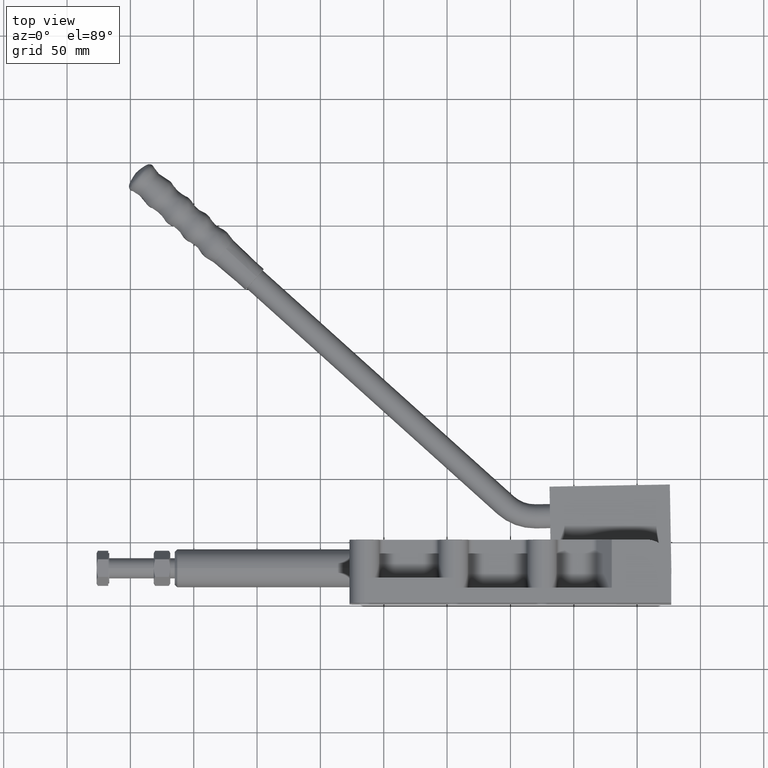
[diagram: clean part render]
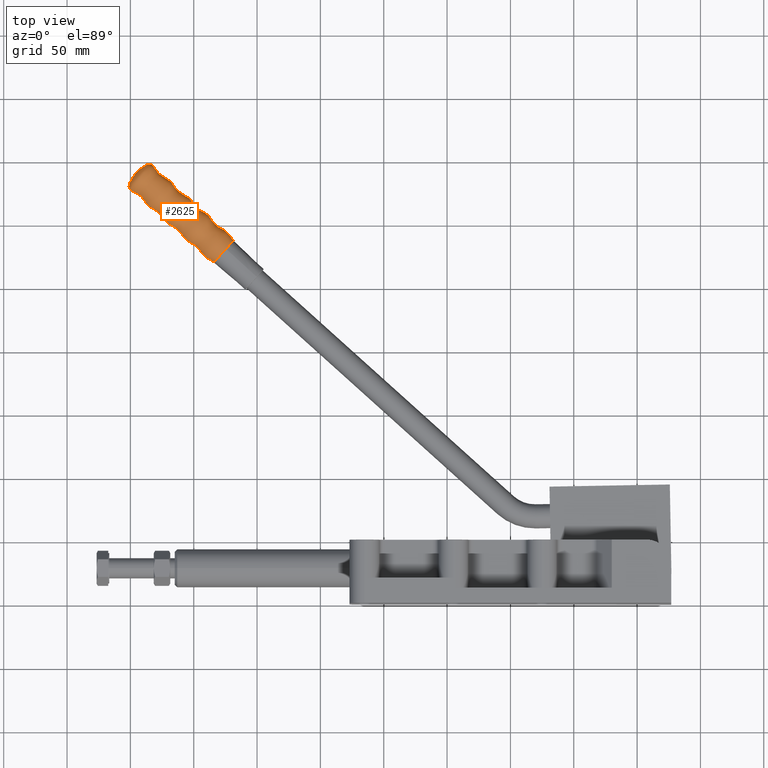
[diagram: same view with one face highlighted and labeled with its STEP entity id]
A machine part, top view. The second image highlights one B-rep face of the part: STEP entity #2625.
In plain terms, the highlighted face is a freeform B-spline surface patch.
Its self-contained STEP definition (entity closure, byte-faithful):
#28 = CARTESIAN_POINT ( 'NONE',  ( -254.5106291652287500, 335.5743864243483500, 17.11979770972116900 ) ) ;
#52 = CARTESIAN_POINT ( 'NONE',  ( -281.6762217080341200, 321.6960320530941400, 3.560345588633595100 ) ) ;
#107 = CARTESIAN_POINT ( 'NONE',  ( -213.9520070320345200, 293.4108676905666500, -2.609871035224047300 ) ) ;
#194 = B_SPLINE_CURVE_WITH_KNOTS ( 'NONE', 3,
 ( #5061, #5581, #2945, #6637, #3466, #324, #4000, #857, #4531, #1368, #5087, #1919, #5601 ),
 .UNSPECIFIED., .F., .F.,
 ( 4, 1, 1, 1, 1, 1, 1, 1, 1, 1, 4 ),
 ( 0.0000000000000000000, 0.08994797004921591100, 0.1485318457191311700, 0.2197926211854266400, 0.2783764968553418300, 0.3496372723216373300, 0.4082211479915524600, 0.4794819234578480100, 0.5380657991277633100, 0.6093265745940588100, 0.6620836091485169400 ),
 .UNSPECIFIED. ) ;
#238 = CARTESIAN_POINT ( 'NONE',  ( -291.2105354334088400, 345.9810656528912300, 13.53237301223307500 ) ) ;
#259 = DIRECTION ( 'NONE',  ( 0.7307264967569047100, -0.6826703354748771000, -2.333323979202567200E-015 ) ) ;
#324 = CARTESIAN_POINT ( 'NONE',  ( -270.9133151141563200, 318.0170434170149700, 2.435815052611434200 ) ) ;
#525 = CARTESIAN_POINT ( 'NONE',  ( -238.4985115027032200, 294.1401816108452200, 21.75009523037987700 ) ) ;
#578 = CARTESIAN_POINT ( 'NONE',  ( -276.9516711403325100, 326.7531644721934200, 32.23432350591771500 ) ) ;
#595 = EDGE_CURVE ( 'NONE', #5149, #3322, #4922, .T. ) ;
#603 = CARTESIAN_POINT ( 'NONE',  ( -243.0910718047488200, 318.5387892606787000, -2.240415557229932000 ) ) ;
#627 = CARTESIAN_POINT ( 'NONE',  ( -213.9520070320345400, 293.4108676905667600, -2.609871035224113500 ) ) ;
#679 = FACE_OUTER_BOUND ( 'NONE', #6065, .T. ) ;
#770 = CARTESIAN_POINT ( 'NONE',  ( -285.0029958433385100, 352.6255812007604500, -1.346448769620172100 ) ) ;
#775 = DIRECTION ( 'NONE',  ( -0.1601687072476779800, -0.1714436855612906900, -0.9720869549066939500 ) ) ;
#857 = CARTESIAN_POINT ( 'NONE',  ( -256.3305991171629300, 304.3672735099785900, 2.440415557231811600 ) ) ;
#1037 = CARTESIAN_POINT ( 'NONE',  ( -228.4932932773765500, 304.8497110618294000, -2.231364203453521700 ) ) ;
#1075 = CARTESIAN_POINT ( 'NONE',  ( -253.1351345699522700, 307.7876808321599900, 21.83415016737093200 ) ) ;
#1113 = CARTESIAN_POINT ( 'NONE',  ( -247.4714261874101500, 328.8849949211920000, -3.343399118365032700 ) ) ;
#1127 = CARTESIAN_POINT ( 'NONE',  ( -272.2493752652471800, 345.3338925256084100, -2.161825353253809600 ) ) ;
#1204 = CARTESIAN_POINT ( 'NONE',  ( -213.9520070320345200, 293.4108676905666500, -2.609871035224047300 ) ) ;
#1262 = EDGE_CURVE ( 'NONE', #1537, #5149, #3994, .T. ) ;
#1264 = CARTESIAN_POINT ( 'NONE',  ( -289.6304294393317500, 348.7473169137550100, 0.1000000000010746300 ) ) ;
#1325 = CARTESIAN_POINT ( 'NONE',  ( -285.0443246270434700, 331.6382505188062200, 2.361825353255911300 ) ) ;
#1368 = CARTESIAN_POINT ( 'NONE',  ( -241.6816178684758000, 290.7330024167358700, 2.431364203455308500 ) ) ;
#1537 = VERTEX_POINT ( 'NONE', #1204 ) ;
#1584 = CARTESIAN_POINT ( 'NONE',  ( -247.6355673098859400, 299.4098202889007900, 32.09251382653391700 ) ) ;
#1596 = CARTESIAN_POINT ( 'NONE',  ( -266.9504356027677000, 308.0347725360670100, 3.543399118366930400 ) ) ;
#1644 = CARTESIAN_POINT ( 'NONE',  ( -212.0684810393677000, 299.2055255599586900, 19.96441600118167500 ) ) ;
#1647 = CARTESIAN_POINT ( 'NONE',  ( -257.3767970161409300, 347.7059999037753600, 25.31363232865251700 ) ) ;
#1657 = CARTESIAN_POINT ( 'NONE',  ( -257.6998124563745000, 332.1607025234161500, -2.235815052609418300 ) ) ;
#1673 = CARTESIAN_POINT ( 'NONE',  ( -231.2126437834489300, 278.7137211730060900, 2.826213477871672500 ) ) ;
#1770 = B_SPLINE_CURVE_WITH_KNOTS ( 'NONE', 3,
 ( #3225, #6395, #4282, #1127, #4829, #1657, #5356, #2197, #5897, #2727, #6412, #3251, #107 ),
 .UNSPECIFIED., .F., .F.,
 ( 4, 1, 1, 1, 1, 1, 1, 1, 1, 1, 4 ),
 ( 0.0000000000000000000, 0.08994797004921591100, 0.1485318457191311700, 0.2197926211854266400, 0.2783764968553418300, 0.3496372723216373300, 0.4082211479915524600, 0.4794819234578480100, 0.5380657991277633100, 0.6093265745940588100, 0.6620836091485169400 ),
 .UNSPECIFIED. ) ;
#1866 = CARTESIAN_POINT ( 'NONE',  ( -229.2815118599849600, 277.0022517337091000, 2.809871035225806100 ) ) ;
#1919 = CARTESIAN_POINT ( 'NONE',  ( -231.2126437834488700, 278.7137211730060400, 2.826213477871680100 ) ) ;
#2185 = CARTESIAN_POINT ( 'NONE',  ( -215.7906911783962300, 295.2212927117666900, -2.626213477869974600 ) ) ;
#2197 = CARTESIAN_POINT ( 'NONE',  ( -243.0910718047488200, 318.5387892606787000, -2.240415557229888500 ) ) ;
#2264 = CARTESIAN_POINT ( 'NONE',  ( -229.2815118599850200, 277.0022517337091600, 2.809871035225799400 ) ) ;
#2410 = CARTESIAN_POINT ( 'NONE',  ( -283.0281005097293100, 354.7394980850877500, 10.63947547299051200 ) ) ;
#2625 = ADVANCED_FACE ( 'NONE', ( #679 ), #5751, .F. ) ;
#2655 = CARTESIAN_POINT ( 'NONE',  ( -241.6816178684759100, 290.7330024167359300, 2.431364203455302200 ) ) ;
#2669 = CARTESIAN_POINT ( 'NONE',  ( -257.6998124563745000, 332.1607025234161500, -2.235815052609461300 ) ) ;
#2715 = CARTESIAN_POINT ( 'NONE',  ( -238.0009115180335500, 280.9517867818578300, 3.549981909737450500 ) ) ;
#2727 = CARTESIAN_POINT ( 'NONE',  ( -228.4932932773765500, 304.8497110618294000, -2.231364203453479100 ) ) ;
#2880 = CARTESIAN_POINT ( 'NONE',  ( -289.6304294393316900, 348.7473169137550100, 0.1000000000010286400 ) ) ;
#2945 = CARTESIAN_POINT ( 'NONE',  ( -299.0558346065514000, 335.8084857256033000, 3.934981889074044200 ) ) ;
#3157 = CARTESIAN_POINT ( 'NONE',  ( -228.1470776593870400, 320.2701902645292200, 25.20236385536513500 ) ) ;
#3165 = CARTESIAN_POINT ( 'NONE',  ( -256.3305991171631000, 304.3672735099786500, 2.440415557231805400 ) ) ;
#3175 = CARTESIAN_POINT ( 'NONE',  ( -218.4846638242539700, 301.8418688112687400, -3.349981909735738000 ) ) ;
#3186 = CARTESIAN_POINT ( 'NONE',  ( -267.7241318230107900, 321.4307273179471700, 21.79142781494213900 ) ) ;
#3225 = CARTESIAN_POINT ( 'NONE',  ( -289.6304294393315200, 348.7473169137547900, 0.1000000000011044000 ) ) ;
#3251 = CARTESIAN_POINT ( 'NONE',  ( -215.7906911783962300, 295.2212927117666900, -2.626213477869924900 ) ) ;
#3294 = CARTESIAN_POINT ( 'NONE',  ( -299.0558346065516300, 335.8084857256034800, 3.934981889074033600 ) ) ;
#3322 = VERTEX_POINT ( 'NONE', #1866 ) ;
#3409 = CARTESIAN_POINT ( 'NONE',  ( -221.6167594460097200, 285.2065597121379000, 0.1000000000008902400 ) ) ;
#3466 = CARTESIAN_POINT ( 'NONE',  ( -281.6762217080338900, 321.6960320530939700, 3.560345588633604000 ) ) ;
#3702 = CARTESIAN_POINT ( 'NONE',  ( -242.7700133247924400, 333.9173608705908100, 25.19015273402023800 ) ) ;
#3714 = CARTESIAN_POINT ( 'NONE',  ( -225.3101869116037500, 308.2568902559388600, 17.08736682347096900 ) ) ;
#3749 = CARTESIAN_POINT ( 'NONE',  ( -239.8956072575379000, 321.9591965828600500, 17.15331905290911500 ) ) ;
#3766 = CARTESIAN_POINT ( 'NONE',  ( -233.2905109026292500, 285.9937731714107400, 32.13808172837669700 ) ) ;
#3775 = CARTESIAN_POINT ( 'NONE',  ( -269.1612131198629100, 348.6394439589282100, 16.58067552441502500 ) ) ;
#3933 = DIRECTION ( 'NONE',  ( -0.1601687072476779800, -0.1714436855612906900, -0.9720869549066939500 ) ) ;
#3965 = CARTESIAN_POINT ( 'NONE',  ( -272.2493752652471800, 345.3338925256084100, -2.161825353253850900 ) ) ;
#3994 = CIRCLE ( 'NONE', #4147, 11.54999999999999400 ) ;
#4000 = CARTESIAN_POINT ( 'NONE',  ( -266.9504356027675300, 308.0347725360669500, 3.543399118366939300 ) ) ;
#4088 = ORIENTED_EDGE ( 'NONE', *, *, #5778, .T. ) ;
#4147 = AXIS2_PLACEMENT_3D ( 'NONE', #5335, #4281, #775 ) ;
#4272 = CARTESIAN_POINT ( 'NONE',  ( -262.1013475838426500, 342.6488674846759200, -3.360345588631603600 ) ) ;
#4281 = DIRECTION ( 'NONE',  ( 0.7307264967569047100, -0.6826703354748771000, -2.333323979202567200E-015 ) ) ;
#4282 = CARTESIAN_POINT ( 'NONE',  ( -277.3616755047082700, 359.0297919063527800, -3.734981889071876000 ) ) ;
#4467 = CARTESIAN_POINT ( 'NONE',  ( -277.3616755047082700, 359.0297919063527800, -3.734981889071946600 ) ) ;
#4531 = CARTESIAN_POINT ( 'NONE',  ( -252.3392683021759500, 294.3750051383387900, 3.545074985585344500 ) ) ;
#4537 = CARTESIAN_POINT ( 'NONE',  ( -289.6304294393315200, 348.7473169137547900, 0.1000000000011044000 ) ) ;
#4603 = CARTESIAN_POINT ( 'NONE',  ( -281.9561624816593100, 334.9438019521259700, 21.10432623092486500 ) ) ;
#4787 = CARTESIAN_POINT ( 'NONE',  ( -262.2490227401500500, 313.0671384854657000, 32.07695097075236400 ) ) ;
#4818 = CARTESIAN_POINT ( 'NONE',  ( -270.9133151141564900, 318.0170434170150900, 2.435815052611428400 ) ) ;
#4829 = CARTESIAN_POINT ( 'NONE',  ( -262.1013475838426500, 342.6488674846759200, -3.360345588631540100 ) ) ;
#4910 = AXIS2_PLACEMENT_3D ( 'NONE', #3409, #259, #3933 ) ;
#4922 = CIRCLE ( 'NONE', #4910, 11.54999999999999400 ) ;
#5061 = CARTESIAN_POINT ( 'NONE',  ( -289.6304294393315200, 348.7473169137547900, 0.1000000000011044000 ) ) ;
#5087 = CARTESIAN_POINT ( 'NONE',  ( -238.0009115180334300, 280.9517867818578300, 3.549981909737459400 ) ) ;
#5105 = EDGE_CURVE ( 'NONE', #5362, #1537, #1770, .T. ) ;
#5149 = VERTEX_POINT ( 'NONE', #6458 ) ;
#5220 = ORIENTED_EDGE ( 'NONE', *, *, #595, .F. ) ;
#5243 = CARTESIAN_POINT ( 'NONE',  ( -289.6304294393317500, 348.7473169137550100, 0.1000000000010746500 ) ) ;
#5295 = CARTESIAN_POINT ( 'NONE',  ( -232.8507786516772500, 315.2353751139672200, -3.345074985583531600 ) ) ;
#5335 = CARTESIAN_POINT ( 'NONE',  ( -221.6167594460097200, 285.2065597121379000, 0.1000000000008902400 ) ) ;
#5346 = CARTESIAN_POINT ( 'NONE',  ( -210.2521098946131400, 297.3712168270327000, 19.84533762312067000 ) ) ;
#5356 = CARTESIAN_POINT ( 'NONE',  ( -247.4714261874101500, 328.8849949211920000, -3.343399118364969200 ) ) ;
#5362 = VERTEX_POINT ( 'NONE', #4537 ) ;
#5374 = CARTESIAN_POINT ( 'NONE',  ( -272.1256187592010700, 364.6344376682097300, 28.04340069840741700 ) ) ;
#5390 = ORIENTED_EDGE ( 'NONE', *, *, #1262, .F. ) ;
#5581 = CARTESIAN_POINT ( 'NONE',  ( -293.1854307670177500, 343.8671487685637100, 1.546448769622320600 ) ) ;
#5582 = CARTESIAN_POINT ( 'NONE',  ( -293.8197778610445400, 341.4131314874603600, 35.71336447655332300 ) ) ;
#5601 = CARTESIAN_POINT ( 'NONE',  ( -229.2815118599849600, 277.0022517337091000, 2.809871035225806100 ) ) ;
#5667 = CARTESIAN_POINT ( 'NONE',  ( -252.3392683021760700, 294.3750051383389100, 3.545074985585336100 ) ) ;
#5751 =( BOUNDED_SURFACE ( )  B_SPLINE_SURFACE ( 3, 3, ( 
 ( #1264, #5243, #2880, #6017 ),
 ( #770, #2410, #238, #6653 ),
 ( #4467, #5374, #5582, #3294 ),
 ( #3965, #3775, #4603, #1325 ),
 ( #4272, #1647, #578, #52 ),
 ( #2669, #28, #3186, #4818 ),
 ( #1113, #3702, #4787, #1596 ),
 ( #603, #3749, #1075, #3165 ),
 ( #5295, #3157, #1584, #5667 ),
 ( #1037, #3714, #525, #2655 ),
 ( #3175, #6346, #3766, #2715 ),
 ( #2185, #1644, #5881, #1673 ),
 ( #627, #5346, #6520, #2264 ) ),
 .UNSPECIFIED., .F., .F., .T. ) 
 B_SPLINE_SURFACE_WITH_KNOTS ( ( 4, 1, 1, 1, 1, 1, 1, 1, 1, 1, 4 ),
 ( 4, 4 ),
 ( 0.0000000000000000000, 0.08994797004921591100, 0.1485318457191311700, 0.2197926211854266400, 0.2783764968553418300, 0.3496372723216373300, 0.4082211479915525100, 0.4794819234578480100, 0.5380657991277633100, 0.6093265745940588100, 0.6620836091485169400 ),
 ( 0.0000000000000000000, 1.000000000000000000 ),
 .UNSPECIFIED. ) 
 GEOMETRIC_REPRESENTATION_ITEM ( )  RATIONAL_B_SPLINE_SURFACE ( (
 ( 1.000000000000000000, 0.3333333333333315900, 0.3333333333333315900, 1.000000000000000000),
 ( 1.000000000000000000, 0.3333333333333315900, 0.3333333333333315900, 1.000000000000000000),
 ( 1.000000000000000000, 0.3333333333333315900, 0.3333333333333315900, 1.000000000000000000),
 ( 1.000000000000000000, 0.3333333333333315900, 0.3333333333333315900, 1.000000000000000000),
 ( 1.000000000000000000, 0.3333333333333315900, 0.3333333333333315900, 1.000000000000000000),
 ( 1.000000000000000000, 0.3333333333333315900, 0.3333333333333315900, 1.000000000000000000),
 ( 1.000000000000000000, 0.3333333333333315900, 0.3333333333333315900, 1.000000000000000000),
 ( 1.000000000000000000, 0.3333333333333315900, 0.3333333333333315900, 1.000000000000000000),
 ( 1.000000000000000000, 0.3333333333333315900, 0.3333333333333315900, 1.000000000000000000),
 ( 1.000000000000000000, 0.3333333333333315900, 0.3333333333333315900, 1.000000000000000000),
 ( 1.000000000000000000, 0.3333333333333315900, 0.3333333333333315900, 1.000000000000000000),
 ( 1.000000000000000000, 0.3333333333333315900, 0.3333333333333315900, 1.000000000000000000),
 ( 1.000000000000000000, 0.3333333333333315900, 0.3333333333333315900, 1.000000000000000000) ) ) 
 REPRESENTATION_ITEM ( '' )  SURFACE ( )  );
#5778 = EDGE_CURVE ( 'NONE', #5362, #3322, #194, .T. ) ;
#5799 = ORIENTED_EDGE ( 'NONE', *, *, #5105, .F. ) ;
#5881 = CARTESIAN_POINT ( 'NONE',  ( -227.4904336444204500, 282.6979540211980300, 25.41684295692324700 ) ) ;
#5897 = CARTESIAN_POINT ( 'NONE',  ( -232.8507786516772500, 315.2353751139672200, -3.345074985583467600 ) ) ;
#6017 = CARTESIAN_POINT ( 'NONE',  ( -289.6304294393316900, 348.7473169137550100, 0.1000000000011044100 ) ) ;
#6065 = EDGE_LOOP ( 'NONE', ( #5799, #4088, #5220, #5390 ) ) ;
#6346 = CARTESIAN_POINT ( 'NONE',  ( -213.7742632088495600, 306.8838552008218100, 25.23811790890350800 ) ) ;
#6395 = CARTESIAN_POINT ( 'NONE',  ( -285.0029958433385100, 352.6255812007604500, -1.346448769620145500 ) ) ;
#6412 = CARTESIAN_POINT ( 'NONE',  ( -218.4846638242539700, 301.8418688112687400, -3.349981909735674400 ) ) ;
#6458 = CARTESIAN_POINT ( 'NONE',  ( -219.7668108772990400, 287.1867342803707900, 11.32760432917319800 ) ) ;
#6520 = CARTESIAN_POINT ( 'NONE',  ( -225.5816147225636700, 280.9626008701749800, 25.26507969357059100 ) ) ;
#6637 = CARTESIAN_POINT ( 'NONE',  ( -285.0443246270433000, 331.6382505188061600, 2.361825353255917500 ) ) ;
#6653 = CARTESIAN_POINT ( 'NONE',  ( -293.1854307670179800, 343.8671487685638800, 1.546448769622316600 ) ) ;